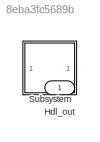
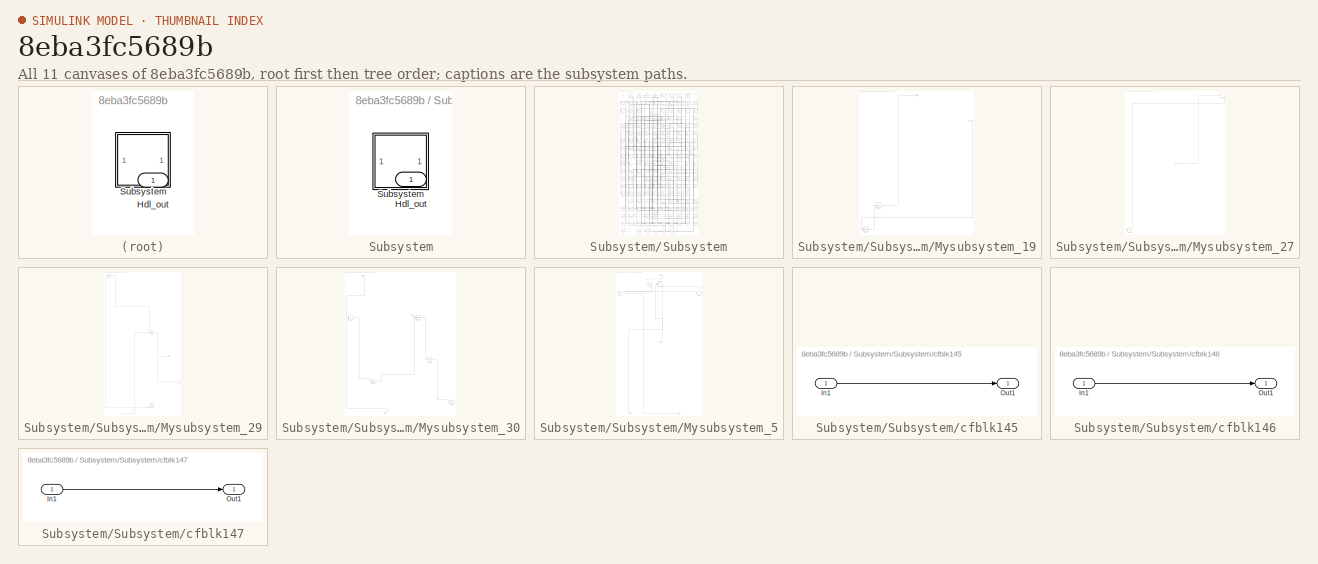
[diagram: thumbnail index - all 11 canvases of the model, root first then tree order]
MODEL slx_8eba3fc5689b
KIND model
CONFIG AbsTol = auto
CONFIG EnableMultiTasking = off
CONFIG FixedStep = auto
CONFIG MaxStep = auto
CONFIG MinStep = auto
CONFIG RelTol = 1e-3
CONFIG SampleTimeConstraint = Unconstrained
CONFIG SolverName = VariableStepAuto
CONFIG StartTime = 0.0
CONFIG StopTime = 10.0
BLOCK [Outport] Hdl_out
  OutDataTypeStr = uint8
BLOCK [SubSystem] Subsystem
BLOCK [Outport] Subsystem/Hdl_out
  OutDataTypeStr = uint8
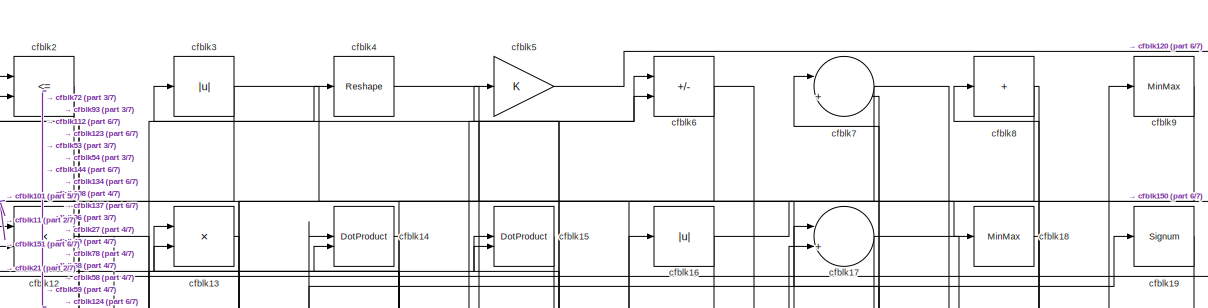
[diagram: Subsystem/Subsystem - part 1/7, full width, top band]
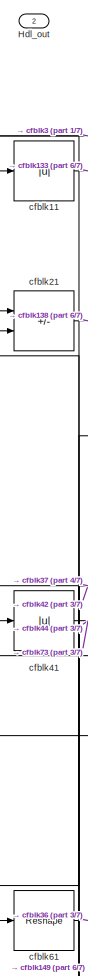
[diagram: Subsystem/Subsystem - part 2/7, top left region]
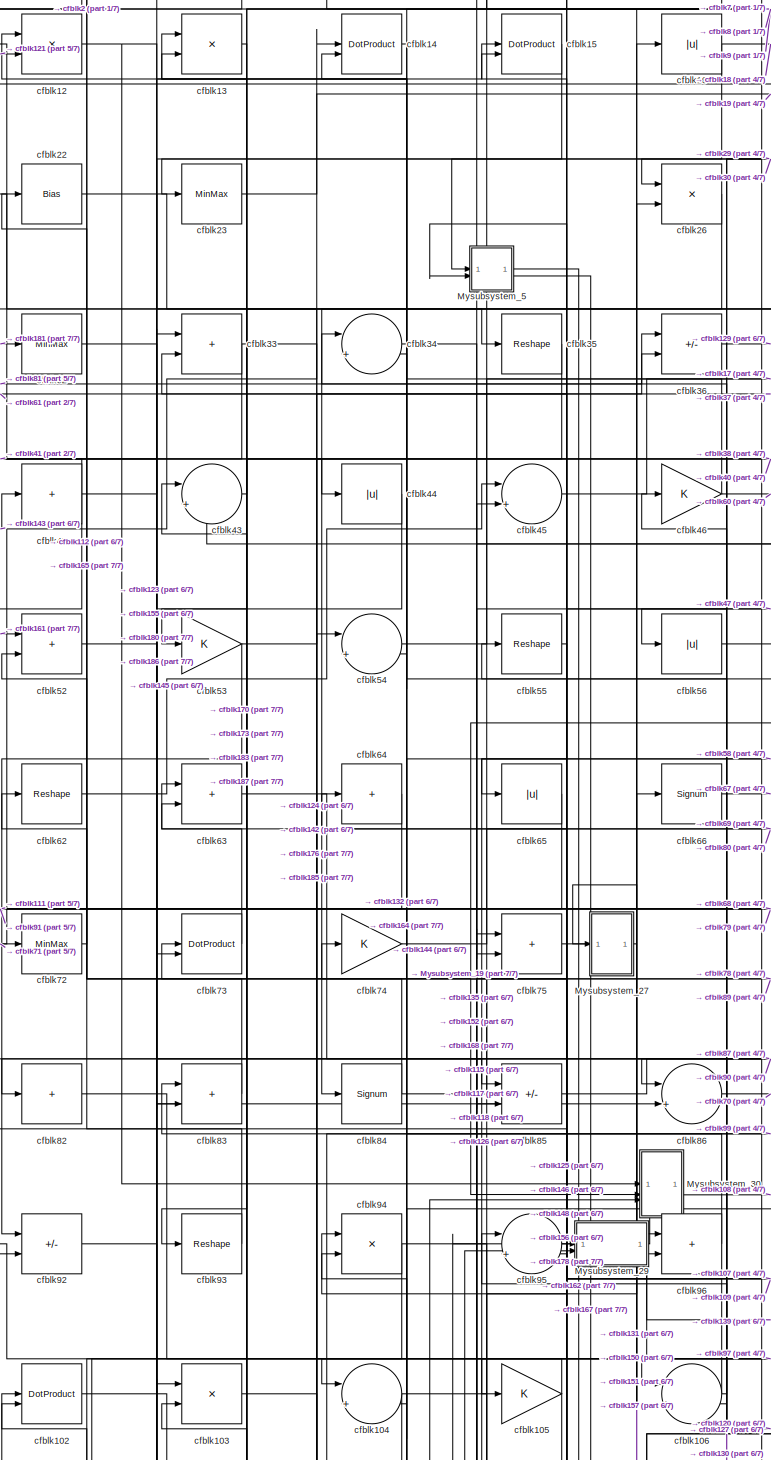
[diagram: Subsystem/Subsystem - part 3/7, top center region]
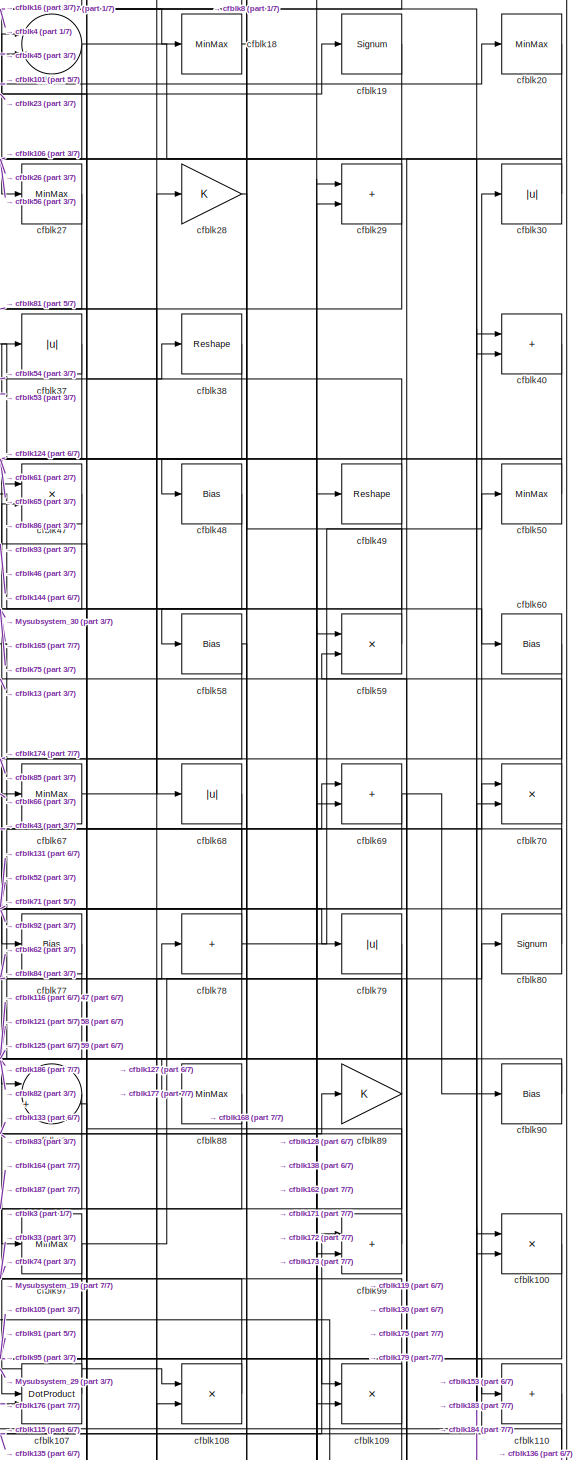
[diagram: Subsystem/Subsystem - part 4/7, top right region]
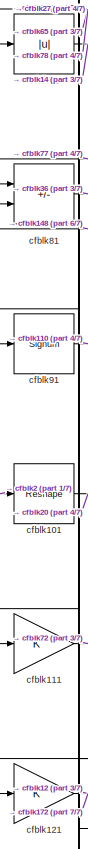
[diagram: Subsystem/Subsystem - part 5/7, middle left region]
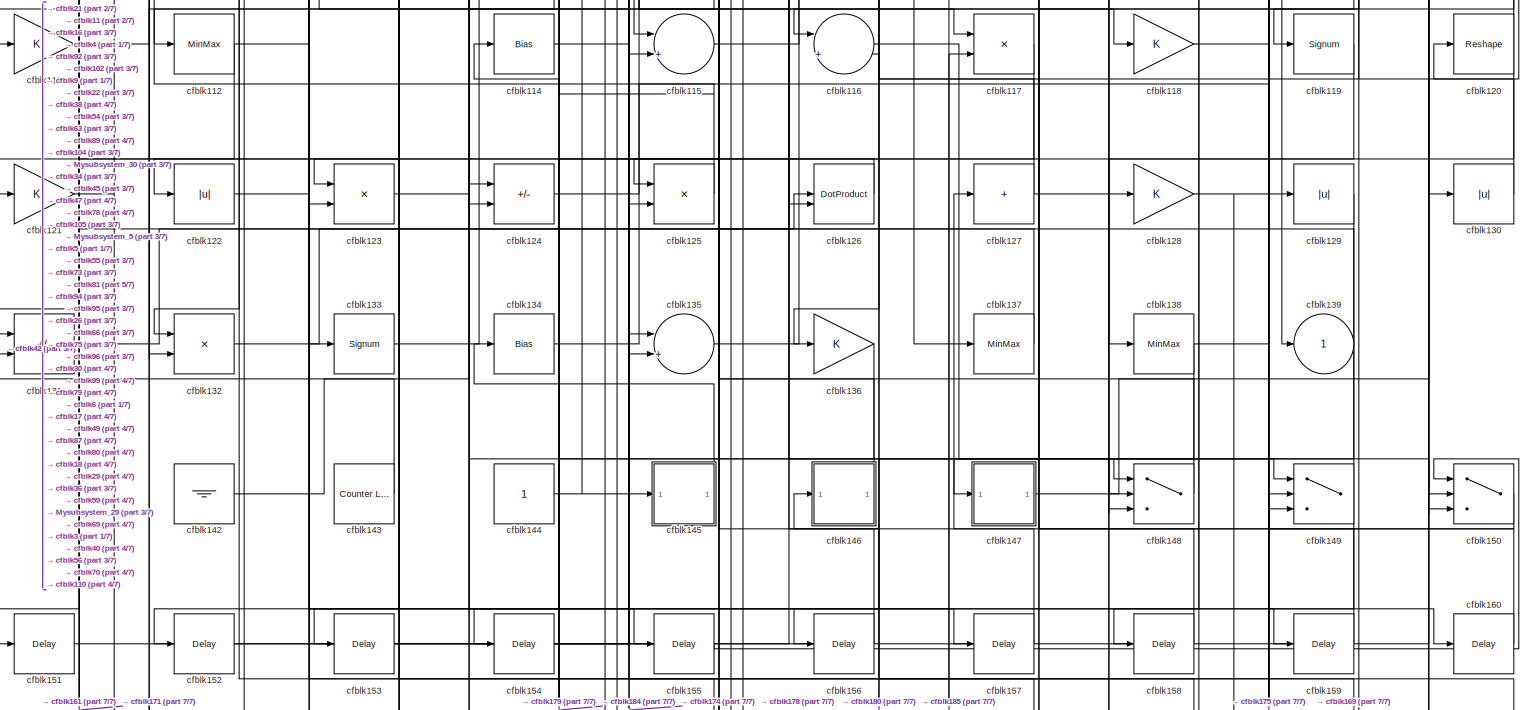
[diagram: Subsystem/Subsystem - part 6/7, full width, bottom band]
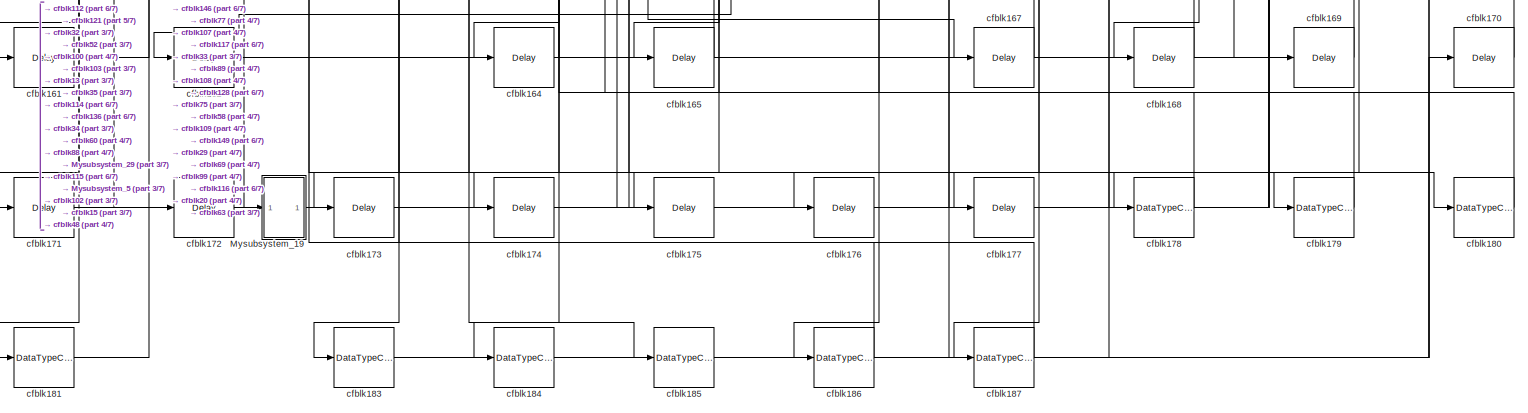
[diagram: Subsystem/Subsystem - part 7/7, full width, bottom band]
BLOCK [SubSystem] Subsystem/Subsystem
BLOCK [Outport] Subsystem/Subsystem/Hdl_out
  OutDataTypeStr = uint8
  Port = 2
BLOCK [SubSystem] Subsystem/Subsystem/Mysubsystem_19
  RTWFcnName = Mysubsystem_19
  RTWFcnNameOpts = User specified
  RTWFileNameOpts = Use function name
  RTWSystemCode = Reusable function
  TreatAsAtomicUnit = on
BLOCK [Inport] Subsystem/Subsystem/Mysubsystem_19/In1
BLOCK [Outport] Subsystem/Subsystem/Mysubsystem_19/Out1
BLOCK [Delay] Subsystem/Subsystem/Mysubsystem_19/cfblk163
  InputPortMap = u0
  SampleTime = 1
BLOCK [DataTypeConversion] Subsystem/Subsystem/Mysubsystem_19/cfblk182
  OutDataTypeStr = uint8
  RndMeth = Floor
  SaturateOnIntegerOverflow = off
BLOCK [SubSystem] Subsystem/Subsystem/Mysubsystem_27
  RTWFcnName = Mysubsystem_27
  RTWFcnNameOpts = User specified
  RTWFileNameOpts = Use function name
  RTWSystemCode = Reusable function
  TreatAsAtomicUnit = on
BLOCK [Inport] Subsystem/Subsystem/Mysubsystem_27/In1
BLOCK [Sum] Subsystem/Subsystem/Mysubsystem_27/cfblk10
  IconShape = rectangular
  Inputs = +
BLOCK [Scope] Subsystem/Subsystem/Mysubsystem_27/cfblk141
  Floating = off
  NumInputPorts = 1
  ScopeSpecificationString = Simulink.scopes.TimeScopeBlockCfg('CurrentConfiguration', extmgr.ConfigurationSet(extmgr.Configuration('Core','General UI',true),extmgr.Configuration('Core','Source UI',true),extmgr.Configuration('Sources','WiredSimulink',true,'DataLoggingVariableName','ScopeData2','DataLoggingSaveFormat','Array','DataLoggingLimitDataPoints',true,'DataLoggingDecimation','1'),extmgr.Configuration('Visuals','Time Do...<+868ch>
BLOCK [SubSystem] Subsystem/Subsystem/Mysubsystem_29
  RTWFcnName = Mysubsystem_29
  RTWFcnNameOpts = User specified
  RTWFileNameOpts = Use function name
  RTWSystemCode = Reusable function
  TreatAsAtomicUnit = on
BLOCK [Inport] Subsystem/Subsystem/Mysubsystem_29/In1
BLOCK [Inport] Subsystem/Subsystem/Mysubsystem_29/In2
  Port = 2
BLOCK [Outport] Subsystem/Subsystem/Mysubsystem_29/Out1
BLOCK [Reference] Subsystem/Subsystem/Mysubsystem_29/cfblk1  REF=simulink/Logic and Bit
Operations/Bit Clear
  LibrarySourceBlock = hdlsllib/Logic and Bit\nOperations/Bit Clear
  SourceBlock = simulink/Logic and Bit\nOperations/Bit Clear
  SourceType = Bit Clear
BLOCK [Outport] Subsystem/Subsystem/Mysubsystem_29/cfblk139
  Port = 2
  VectorParamsAs1DForOutWhenUnconnected = off
BLOCK [Delay] Subsystem/Subsystem/Mysubsystem_29/cfblk166
  InputPortMap = u0
  SampleTime = 1
BLOCK [DotProduct] Subsystem/Subsystem/Mysubsystem_29/cfblk76
  OutDataTypeStr = Inherit: Inherit via internal rule
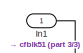
[diagram: Subsystem/Subsystem/Mysubsystem_30 - part 1/3, top left region]
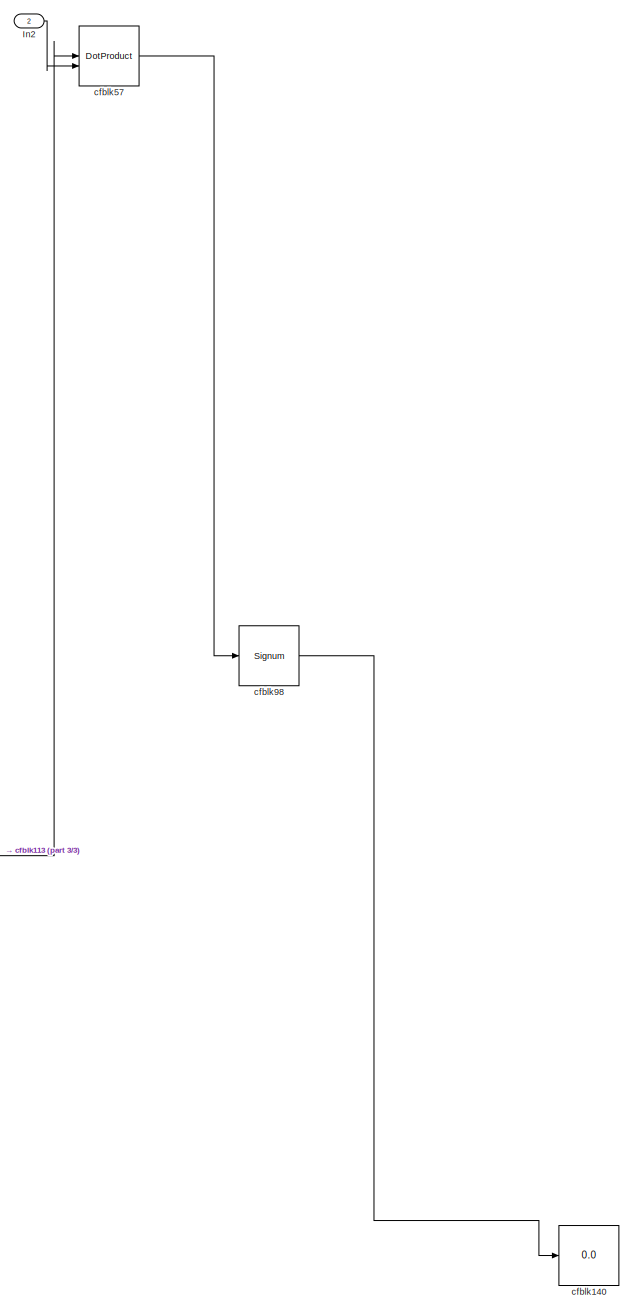
[diagram: Subsystem/Subsystem/Mysubsystem_30 - part 2/3, middle right region]
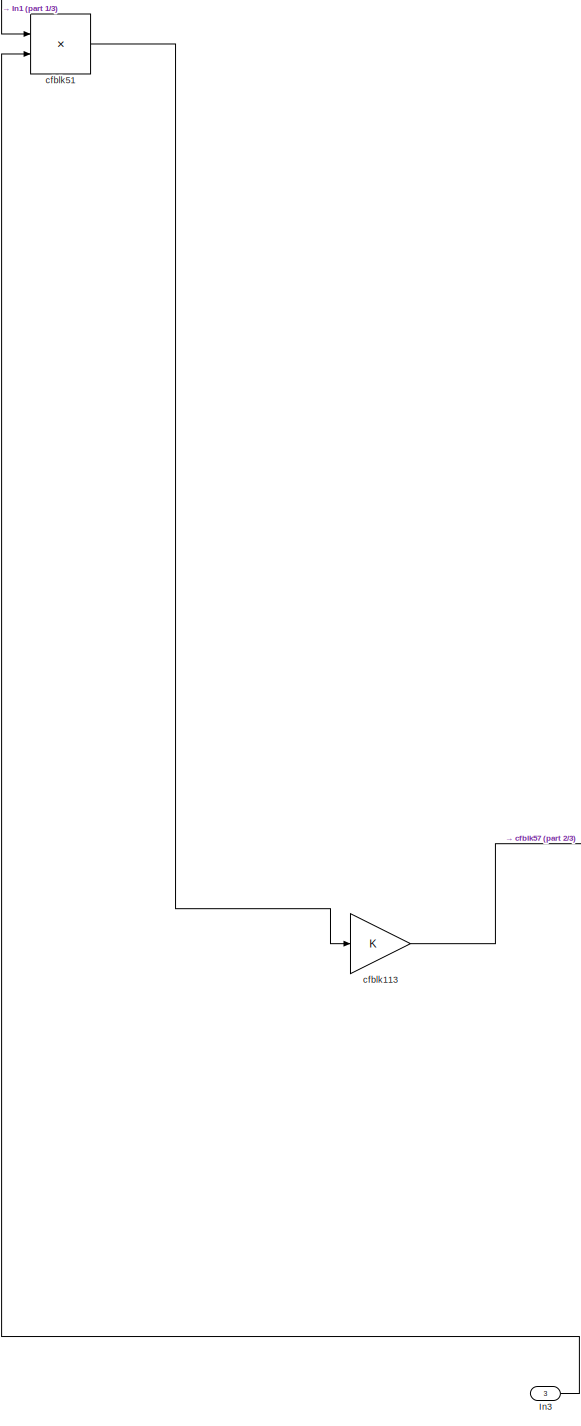
[diagram: Subsystem/Subsystem/Mysubsystem_30 - part 3/3, middle left region]
BLOCK [SubSystem] Subsystem/Subsystem/Mysubsystem_30
  RTWFcnName = Mysubsystem_30
  RTWFcnNameOpts = User specified
  RTWFileNameOpts = Use function name
  RTWSystemCode = Reusable function
  TreatAsAtomicUnit = on
BLOCK [Inport] Subsystem/Subsystem/Mysubsystem_30/In1
BLOCK [Inport] Subsystem/Subsystem/Mysubsystem_30/In2
  Port = 2
BLOCK [Inport] Subsystem/Subsystem/Mysubsystem_30/In3
  Port = 3
BLOCK [Gain] Subsystem/Subsystem/Mysubsystem_30/cfblk113
BLOCK [Display] Subsystem/Subsystem/Mysubsystem_30/cfblk140
  Decimation = 1
BLOCK [Product] Subsystem/Subsystem/Mysubsystem_30/cfblk51
  Inputs = */
  RndMeth = Zero
  SaturateOnIntegerOverflow = on
BLOCK [DotProduct] Subsystem/Subsystem/Mysubsystem_30/cfblk57
  OutDataTypeStr = Inherit: Inherit via internal rule
BLOCK [Signum] Subsystem/Subsystem/Mysubsystem_30/cfblk98
BLOCK [SubSystem] Subsystem/Subsystem/Mysubsystem_5
  RTWFcnName = Mysubsystem_5
  RTWFcnNameOpts = User specified
  RTWFileNameOpts = Use function name
  RTWSystemCode = Reusable function
  TreatAsAtomicUnit = on
BLOCK [Inport] Subsystem/Subsystem/Mysubsystem_5/In1
BLOCK [Inport] Subsystem/Subsystem/Mysubsystem_5/In2
  Port = 2
BLOCK [Outport] Subsystem/Subsystem/Mysubsystem_5/Out1
BLOCK [Outport] Subsystem/Subsystem/Mysubsystem_5/Out2
  Port = 2
BLOCK [Signum] Subsystem/Subsystem/Mysubsystem_5/cfblk24
BLOCK [Sum] Subsystem/Subsystem/Mysubsystem_5/cfblk25
  IconShape = rectangular
  Inputs = +-
BLOCK [Gain] Subsystem/Subsystem/Mysubsystem_5/cfblk31
BLOCK [Sum] Subsystem/Subsystem/Mysubsystem_5/cfblk39
  IconShape = rectangular
  Inputs = +
BLOCK [Product] Subsystem/Subsystem/cfblk100
  Inputs = */
  OutDataTypeStr = uint8
  RndMeth = Zero
  SaturateOnIntegerOverflow = on
BLOCK [Reshape] Subsystem/Subsystem/cfblk101
BLOCK [DotProduct] Subsystem/Subsystem/cfblk102
  OutDataTypeStr = uint8
BLOCK [Product] Subsystem/Subsystem/cfblk103
  Inputs = */
  OutDataTypeStr = uint8
  RndMeth = Zero
  SaturateOnIntegerOverflow = on
BLOCK [Sum] Subsystem/Subsystem/cfblk104
  Inputs = |++
  OutDataTypeStr = uint8
BLOCK [Gain] Subsystem/Subsystem/cfblk105
  OutDataTypeStr = uint8
BLOCK [Sum] Subsystem/Subsystem/cfblk106
  Inputs = |++
  OutDataTypeStr = uint8
BLOCK [DotProduct] Subsystem/Subsystem/cfblk107
  OutDataTypeStr = uint8
BLOCK [Product] Subsystem/Subsystem/cfblk108
  Inputs = */
  OutDataTypeStr = uint8
  RndMeth = Zero
  SaturateOnIntegerOverflow = on
BLOCK [Product] Subsystem/Subsystem/cfblk109
  Inputs = */
  OutDataTypeStr = uint8
  RndMeth = Zero
  SaturateOnIntegerOverflow = on
BLOCK [Abs] Subsystem/Subsystem/cfblk11
  OutDataTypeStr = uint8
  SaturateOnIntegerOverflow = off
BLOCK [Sum] Subsystem/Subsystem/cfblk110
  IconShape = rectangular
  Inputs = +
  OutDataTypeStr = uint8
BLOCK [Gain] Subsystem/Subsystem/cfblk111
  OutDataTypeStr = uint8
BLOCK [MinMax] Subsystem/Subsystem/cfblk112
  OutDataTypeStr = uint8
BLOCK [Bias] Subsystem/Subsystem/cfblk114
  Bias = 0.0
  SaturateOnIntegerOverflow = off
BLOCK [Sum] Subsystem/Subsystem/cfblk115
  Inputs = |++
  OutDataTypeStr = uint8
BLOCK [Sum] Subsystem/Subsystem/cfblk116
  Inputs = |++
  OutDataTypeStr = uint8
BLOCK [Product] Subsystem/Subsystem/cfblk117
  Inputs = */
  OutDataTypeStr = uint8
  RndMeth = Zero
  SaturateOnIntegerOverflow = on
BLOCK [Gain] Subsystem/Subsystem/cfblk118
  OutDataTypeStr = uint8
BLOCK [Signum] Subsystem/Subsystem/cfblk119
BLOCK [Product] Subsystem/Subsystem/cfblk12
  Inputs = */
  OutDataTypeStr = uint8
  RndMeth = Zero
  SaturateOnIntegerOverflow = on
BLOCK [Reshape] Subsystem/Subsystem/cfblk120
BLOCK [Gain] Subsystem/Subsystem/cfblk121
  OutDataTypeStr = uint8
BLOCK [Abs] Subsystem/Subsystem/cfblk122
  OutDataTypeStr = uint8
  SaturateOnIntegerOverflow = off
BLOCK [Product] Subsystem/Subsystem/cfblk123
  Inputs = */
  OutDataTypeStr = uint8
  RndMeth = Zero
  SaturateOnIntegerOverflow = on
BLOCK [Sum] Subsystem/Subsystem/cfblk124
  IconShape = rectangular
  Inputs = +-
  OutDataTypeStr = uint8
BLOCK [Product] Subsystem/Subsystem/cfblk125
  Inputs = */
  OutDataTypeStr = uint8
  RndMeth = Zero
  SaturateOnIntegerOverflow = on
BLOCK [DotProduct] Subsystem/Subsystem/cfblk126
  OutDataTypeStr = uint8
BLOCK [Sum] Subsystem/Subsystem/cfblk127
  IconShape = rectangular
  Inputs = +
  OutDataTypeStr = uint8
BLOCK [Gain] Subsystem/Subsystem/cfblk128
  OutDataTypeStr = uint8
BLOCK [Abs] Subsystem/Subsystem/cfblk129
  OutDataTypeStr = uint8
  SaturateOnIntegerOverflow = off
BLOCK [Product] Subsystem/Subsystem/cfblk13
  Inputs = */
  OutDataTypeStr = uint8
  RndMeth = Zero
  SaturateOnIntegerOverflow = on
BLOCK [Abs] Subsystem/Subsystem/cfblk130
  OutDataTypeStr = uint8
  SaturateOnIntegerOverflow = off
BLOCK [Sum] Subsystem/Subsystem/cfblk131
  IconShape = rectangular
  Inputs = +-
  OutDataTypeStr = uint8
BLOCK [Product] Subsystem/Subsystem/cfblk132
  Inputs = */
  OutDataTypeStr = uint8
  RndMeth = Zero
  SaturateOnIntegerOverflow = on
BLOCK [Signum] Subsystem/Subsystem/cfblk133
BLOCK [Bias] Subsystem/Subsystem/cfblk134
  Bias = 0.0
  SaturateOnIntegerOverflow = off
BLOCK [Sum] Subsystem/Subsystem/cfblk135
  Inputs = |++
  OutDataTypeStr = uint8
BLOCK [Gain] Subsystem/Subsystem/cfblk136
  OutDataTypeStr = uint8
BLOCK [MinMax] Subsystem/Subsystem/cfblk137
  OutDataTypeStr = uint8
BLOCK [MinMax] Subsystem/Subsystem/cfblk138
  OutDataTypeStr = uint8
BLOCK [Outport] Subsystem/Subsystem/cfblk139
  OutDataTypeStr = uint8
  VectorParamsAs1DForOutWhenUnconnected = off
BLOCK [DotProduct] Subsystem/Subsystem/cfblk14
  OutDataTypeStr = uint8
BLOCK [Ground] Subsystem/Subsystem/cfblk142
BLOCK [Reference] Subsystem/Subsystem/cfblk143  REF=hdlsllib/Sources/Counter
Limited
  SourceBlock = hdlsllib/Sources/Counter\nLimited
  SourceType = Counter Limited
BLOCK [Constant] Subsystem/Subsystem/cfblk144
  OutDataTypeStr = uint8
  SampleTime = -1
BLOCK [SubSystem] Subsystem/Subsystem/cfblk145
  LibrarySourceBlock = hdlsllib/Ports &\nSubsystems/Subsystem
BLOCK [Inport] Subsystem/Subsystem/cfblk145/In1
BLOCK [Outport] Subsystem/Subsystem/cfblk145/Out1
BLOCK [SubSystem] Subsystem/Subsystem/cfblk146
  LibrarySourceBlock = hdlsllib/Ports &\nSubsystems/Subsystem
BLOCK [Inport] Subsystem/Subsystem/cfblk146/In1
BLOCK [Outport] Subsystem/Subsystem/cfblk146/Out1
BLOCK [SubSystem] Subsystem/Subsystem/cfblk147
  LibrarySourceBlock = hdlsllib/Ports &\nSubsystems/Subsystem
BLOCK [Inport] Subsystem/Subsystem/cfblk147/In1
BLOCK [Outport] Subsystem/Subsystem/cfblk147/Out1
BLOCK [Switch] Subsystem/Subsystem/cfblk148
  InputSameDT = off
  OutDataTypeStr = uint8
  SaturateOnIntegerOverflow = off
BLOCK [Switch] Subsystem/Subsystem/cfblk149
  InputSameDT = off
  OutDataTypeStr = uint8
  SaturateOnIntegerOverflow = off
BLOCK [DotProduct] Subsystem/Subsystem/cfblk15
  OutDataTypeStr = uint8
BLOCK [Switch] Subsystem/Subsystem/cfblk150
  InputSameDT = off
  OutDataTypeStr = uint8
  SaturateOnIntegerOverflow = off
BLOCK [Delay] Subsystem/Subsystem/cfblk151
  InputPortMap = u0
  SampleTime = 1
BLOCK [Delay] Subsystem/Subsystem/cfblk152
  InputPortMap = u0
  SampleTime = 1
BLOCK [Delay] Subsystem/Subsystem/cfblk153
  InputPortMap = u0
  SampleTime = 1
BLOCK [Delay] Subsystem/Subsystem/cfblk154
  InputPortMap = u0
  SampleTime = 1
BLOCK [Delay] Subsystem/Subsystem/cfblk155
  InputPortMap = u0
  SampleTime = 1
BLOCK [Delay] Subsystem/Subsystem/cfblk156
  InputPortMap = u0
  SampleTime = 1
BLOCK [Delay] Subsystem/Subsystem/cfblk157
  InputPortMap = u0
  SampleTime = 1
BLOCK [Delay] Subsystem/Subsystem/cfblk158
  InputPortMap = u0
  SampleTime = 1
BLOCK [Delay] Subsystem/Subsystem/cfblk159
  InputPortMap = u0
  SampleTime = 1
BLOCK [Abs] Subsystem/Subsystem/cfblk16
  OutDataTypeStr = uint8
  SaturateOnIntegerOverflow = off
BLOCK [Delay] Subsystem/Subsystem/cfblk160
  InputPortMap = u0
  SampleTime = 1
BLOCK [Delay] Subsystem/Subsystem/cfblk161
  InputPortMap = u0
  SampleTime = 1
BLOCK [Delay] Subsystem/Subsystem/cfblk162
  InputPortMap = u0
  SampleTime = 1
BLOCK [Delay] Subsystem/Subsystem/cfblk164
  InputPortMap = u0
  SampleTime = 1
BLOCK [Delay] Subsystem/Subsystem/cfblk165
  InputPortMap = u0
  SampleTime = 1
BLOCK [Delay] Subsystem/Subsystem/cfblk167
  InputPortMap = u0
  SampleTime = 1
BLOCK [Delay] Subsystem/Subsystem/cfblk168
  InputPortMap = u0
  SampleTime = 1
BLOCK [Delay] Subsystem/Subsystem/cfblk169
  InputPortMap = u0
  SampleTime = 1
BLOCK [Sum] Subsystem/Subsystem/cfblk17
  Inputs = |++
  OutDataTypeStr = uint8
BLOCK [Delay] Subsystem/Subsystem/cfblk170
  InputPortMap = u0
  SampleTime = 1
BLOCK [Delay] Subsystem/Subsystem/cfblk171
  InputPortMap = u0
  SampleTime = 1
BLOCK [Delay] Subsystem/Subsystem/cfblk172
  InputPortMap = u0
  SampleTime = 1
BLOCK [Delay] Subsystem/Subsystem/cfblk173
  InputPortMap = u0
  SampleTime = 1
BLOCK [Delay] Subsystem/Subsystem/cfblk174
  InputPortMap = u0
  SampleTime = 1
BLOCK [Delay] Subsystem/Subsystem/cfblk175
  InputPortMap = u0
  SampleTime = 1
BLOCK [Delay] Subsystem/Subsystem/cfblk176
  InputPortMap = u0
  SampleTime = 1
BLOCK [Delay] Subsystem/Subsystem/cfblk177
  InputPortMap = u0
  SampleTime = 1
BLOCK [DataTypeConversion] Subsystem/Subsystem/cfblk178
  OutDataTypeStr = uint8
  RndMeth = Floor
  SaturateOnIntegerOverflow = off
BLOCK [DataTypeConversion] Subsystem/Subsystem/cfblk179
  OutDataTypeStr = uint8
  RndMeth = Floor
  SaturateOnIntegerOverflow = off
BLOCK [MinMax] Subsystem/Subsystem/cfblk18
  OutDataTypeStr = uint8
BLOCK [DataTypeConversion] Subsystem/Subsystem/cfblk180
  OutDataTypeStr = uint8
  RndMeth = Floor
  SaturateOnIntegerOverflow = off
BLOCK [DataTypeConversion] Subsystem/Subsystem/cfblk181
  OutDataTypeStr = uint8
  RndMeth = Floor
  SaturateOnIntegerOverflow = off
BLOCK [DataTypeConversion] Subsystem/Subsystem/cfblk183
  OutDataTypeStr = uint8
  RndMeth = Floor
  SaturateOnIntegerOverflow = off
BLOCK [DataTypeConversion] Subsystem/Subsystem/cfblk184
  OutDataTypeStr = uint8
  RndMeth = Floor
  SaturateOnIntegerOverflow = off
BLOCK [DataTypeConversion] Subsystem/Subsystem/cfblk185
  OutDataTypeStr = uint8
  RndMeth = Floor
  SaturateOnIntegerOverflow = off
BLOCK [DataTypeConversion] Subsystem/Subsystem/cfblk186
  OutDataTypeStr = uint8
  RndMeth = Floor
  SaturateOnIntegerOverflow = off
BLOCK [DataTypeConversion] Subsystem/Subsystem/cfblk187
  OutDataTypeStr = uint8
  RndMeth = Floor
  SaturateOnIntegerOverflow = off
BLOCK [Signum] Subsystem/Subsystem/cfblk19
BLOCK [RelationalOperator] Subsystem/Subsystem/cfblk2
  InputSameDT = off
  Operator = <=
  OutDataTypeStr = boolean
BLOCK [MinMax] Subsystem/Subsystem/cfblk20
  OutDataTypeStr = uint8
BLOCK [Sum] Subsystem/Subsystem/cfblk21
  IconShape = rectangular
  Inputs = +-
  OutDataTypeStr = uint8
BLOCK [Bias] Subsystem/Subsystem/cfblk22
  Bias = 0.0
  SaturateOnIntegerOverflow = off
BLOCK [MinMax] Subsystem/Subsystem/cfblk23
  OutDataTypeStr = uint8
BLOCK [Product] Subsystem/Subsystem/cfblk26
  Inputs = */
  OutDataTypeStr = uint8
  RndMeth = Zero
  SaturateOnIntegerOverflow = on
BLOCK [MinMax] Subsystem/Subsystem/cfblk27
  OutDataTypeStr = uint8
BLOCK [Gain] Subsystem/Subsystem/cfblk28
  OutDataTypeStr = uint8
BLOCK [Sum] Subsystem/Subsystem/cfblk29
  IconShape = rectangular
  OutDataTypeStr = uint8
BLOCK [Abs] Subsystem/Subsystem/cfblk3
  OutDataTypeStr = uint8
  SaturateOnIntegerOverflow = off
BLOCK [Abs] Subsystem/Subsystem/cfblk30
  OutDataTypeStr = uint8
  SaturateOnIntegerOverflow = off
BLOCK [MinMax] Subsystem/Subsystem/cfblk32
  OutDataTypeStr = uint8
BLOCK [Sum] Subsystem/Subsystem/cfblk33
  IconShape = rectangular
  OutDataTypeStr = uint8
BLOCK [Sum] Subsystem/Subsystem/cfblk34
  Inputs = |++
  OutDataTypeStr = uint8
BLOCK [Reshape] Subsystem/Subsystem/cfblk35
BLOCK [Sum] Subsystem/Subsystem/cfblk36
  IconShape = rectangular
  Inputs = +-
  OutDataTypeStr = uint8
BLOCK [Abs] Subsystem/Subsystem/cfblk37
  OutDataTypeStr = uint8
  SaturateOnIntegerOverflow = off
BLOCK [Reshape] Subsystem/Subsystem/cfblk38
BLOCK [Reshape] Subsystem/Subsystem/cfblk4
BLOCK [Sum] Subsystem/Subsystem/cfblk40
  IconShape = rectangular
  OutDataTypeStr = uint8
BLOCK [Abs] Subsystem/Subsystem/cfblk41
  OutDataTypeStr = uint8
  SaturateOnIntegerOverflow = off
BLOCK [Sum] Subsystem/Subsystem/cfblk42
  IconShape = rectangular
  Inputs = +
  OutDataTypeStr = uint8
BLOCK [Sum] Subsystem/Subsystem/cfblk43
  Inputs = |++
  OutDataTypeStr = uint8
BLOCK [Abs] Subsystem/Subsystem/cfblk44
  OutDataTypeStr = uint8
  SaturateOnIntegerOverflow = off
BLOCK [Sum] Subsystem/Subsystem/cfblk45
  Inputs = |++
  OutDataTypeStr = uint8
BLOCK [Gain] Subsystem/Subsystem/cfblk46
  OutDataTypeStr = uint8
BLOCK [Product] Subsystem/Subsystem/cfblk47
  Inputs = */
  OutDataTypeStr = uint8
  RndMeth = Zero
  SaturateOnIntegerOverflow = on
BLOCK [Bias] Subsystem/Subsystem/cfblk48
  Bias = 0.0
  SaturateOnIntegerOverflow = off
BLOCK [Reshape] Subsystem/Subsystem/cfblk49
BLOCK [Gain] Subsystem/Subsystem/cfblk5
  OutDataTypeStr = uint8
BLOCK [MinMax] Subsystem/Subsystem/cfblk50
  OutDataTypeStr = uint8
BLOCK [Sum] Subsystem/Subsystem/cfblk52
  IconShape = rectangular
  OutDataTypeStr = uint8
BLOCK [Gain] Subsystem/Subsystem/cfblk53
  OutDataTypeStr = uint8
BLOCK [Sum] Subsystem/Subsystem/cfblk54
  Inputs = |++
  OutDataTypeStr = uint8
BLOCK [Reshape] Subsystem/Subsystem/cfblk55
BLOCK [Abs] Subsystem/Subsystem/cfblk56
  OutDataTypeStr = uint8
  SaturateOnIntegerOverflow = off
BLOCK [Bias] Subsystem/Subsystem/cfblk58
  Bias = 0.0
  SaturateOnIntegerOverflow = off
BLOCK [Product] Subsystem/Subsystem/cfblk59
  Inputs = */
  OutDataTypeStr = uint8
  RndMeth = Zero
  SaturateOnIntegerOverflow = on
BLOCK [Sum] Subsystem/Subsystem/cfblk6
  IconShape = rectangular
  Inputs = +-
  OutDataTypeStr = uint8
BLOCK [Bias] Subsystem/Subsystem/cfblk60
  Bias = 0.0
  SaturateOnIntegerOverflow = off
BLOCK [Reshape] Subsystem/Subsystem/cfblk61
BLOCK [Reshape] Subsystem/Subsystem/cfblk62
BLOCK [Sum] Subsystem/Subsystem/cfblk63
  IconShape = rectangular
  OutDataTypeStr = uint8
BLOCK [Sum] Subsystem/Subsystem/cfblk64
  IconShape = rectangular
  Inputs = +
  OutDataTypeStr = uint8
BLOCK [Abs] Subsystem/Subsystem/cfblk65
  OutDataTypeStr = uint8
  SaturateOnIntegerOverflow = off
BLOCK [Signum] Subsystem/Subsystem/cfblk66
BLOCK [MinMax] Subsystem/Subsystem/cfblk67
  OutDataTypeStr = uint8
BLOCK [Abs] Subsystem/Subsystem/cfblk68
  OutDataTypeStr = uint8
  SaturateOnIntegerOverflow = off
BLOCK [Sum] Subsystem/Subsystem/cfblk69
  IconShape = rectangular
  OutDataTypeStr = uint8
BLOCK [Sum] Subsystem/Subsystem/cfblk7
  Inputs = |++
  OutDataTypeStr = uint8
BLOCK [Product] Subsystem/Subsystem/cfblk70
  Inputs = */
  OutDataTypeStr = uint8
  RndMeth = Zero
  SaturateOnIntegerOverflow = on
BLOCK [Abs] Subsystem/Subsystem/cfblk71
  OutDataTypeStr = uint8
  SaturateOnIntegerOverflow = off
BLOCK [MinMax] Subsystem/Subsystem/cfblk72
  OutDataTypeStr = uint8
BLOCK [DotProduct] Subsystem/Subsystem/cfblk73
  OutDataTypeStr = uint8
BLOCK [Gain] Subsystem/Subsystem/cfblk74
  OutDataTypeStr = uint8
BLOCK [Sum] Subsystem/Subsystem/cfblk75
  IconShape = rectangular
  OutDataTypeStr = uint8
BLOCK [Bias] Subsystem/Subsystem/cfblk77
  Bias = 0.0
  SaturateOnIntegerOverflow = off
BLOCK [Sum] Subsystem/Subsystem/cfblk78
  IconShape = rectangular
  Inputs = +
  OutDataTypeStr = uint8
BLOCK [Abs] Subsystem/Subsystem/cfblk79
  OutDataTypeStr = uint8
  SaturateOnIntegerOverflow = off
BLOCK [Sum] Subsystem/Subsystem/cfblk8
  IconShape = rectangular
  Inputs = +
  OutDataTypeStr = uint8
BLOCK [Signum] Subsystem/Subsystem/cfblk80
BLOCK [Sum] Subsystem/Subsystem/cfblk81
  IconShape = rectangular
  Inputs = +-
  OutDataTypeStr = uint8
BLOCK [Sum] Subsystem/Subsystem/cfblk82
  IconShape = rectangular
  Inputs = +
  OutDataTypeStr = uint8
BLOCK [Sum] Subsystem/Subsystem/cfblk83
  IconShape = rectangular
  OutDataTypeStr = uint8
BLOCK [Signum] Subsystem/Subsystem/cfblk84
BLOCK [Sum] Subsystem/Subsystem/cfblk85
  IconShape = rectangular
  Inputs = +-
  OutDataTypeStr = uint8
BLOCK [Sum] Subsystem/Subsystem/cfblk86
  Inputs = |++
  OutDataTypeStr = uint8
BLOCK [Sum] Subsystem/Subsystem/cfblk87
  Inputs = |++
  OutDataTypeStr = uint8
BLOCK [MinMax] Subsystem/Subsystem/cfblk88
  OutDataTypeStr = uint8
BLOCK [Gain] Subsystem/Subsystem/cfblk89
  OutDataTypeStr = uint8
BLOCK [MinMax] Subsystem/Subsystem/cfblk9
  OutDataTypeStr = uint8
BLOCK [Bias] Subsystem/Subsystem/cfblk90
  Bias = 0.0
  SaturateOnIntegerOverflow = off
BLOCK [Signum] Subsystem/Subsystem/cfblk91
BLOCK [Sum] Subsystem/Subsystem/cfblk92
  IconShape = rectangular
  Inputs = +-
  OutDataTypeStr = uint8
BLOCK [Reshape] Subsystem/Subsystem/cfblk93
BLOCK [Product] Subsystem/Subsystem/cfblk94
  Inputs = */
  OutDataTypeStr = uint8
  RndMeth = Zero
  SaturateOnIntegerOverflow = on
BLOCK [Sum] Subsystem/Subsystem/cfblk95
  Inputs = |++
  OutDataTypeStr = uint8
BLOCK [Sum] Subsystem/Subsystem/cfblk96
  IconShape = rectangular
  OutDataTypeStr = uint8
BLOCK [MinMax] Subsystem/Subsystem/cfblk97
  OutDataTypeStr = uint8
BLOCK [Sum] Subsystem/Subsystem/cfblk99
  IconShape = rectangular
  OutDataTypeStr = uint8
LINE Subsystem/Subsystem/Mysubsystem_19/In1:1 -> Subsystem/Subsystem/Mysubsystem_19/cfblk182:1
LINE Subsystem/Subsystem/Mysubsystem_19/cfblk163:1 -> Subsystem/Subsystem/Mysubsystem_19/Out1:1
LINE Subsystem/Subsystem/Mysubsystem_19/cfblk182:1 -> Subsystem/Subsystem/Mysubsystem_19/cfblk163:1
LINE Subsystem/Subsystem/Mysubsystem_19:1 -> Subsystem/Subsystem/Mysubsystem_29:2
LINE Subsystem/Subsystem/Mysubsystem_27/In1:1 -> Subsystem/Subsystem/Mysubsystem_27/cfblk10:1
LINE Subsystem/Subsystem/Mysubsystem_27/cfblk10:1 -> Subsystem/Subsystem/Mysubsystem_27/cfblk141:1
LINE Subsystem/Subsystem/Mysubsystem_29/In1:1 -> Subsystem/Subsystem/Mysubsystem_29/cfblk166:1
LINE Subsystem/Subsystem/Mysubsystem_29/In2:1 -> Subsystem/Subsystem/Mysubsystem_29/cfblk76:1
LINE Subsystem/Subsystem/Mysubsystem_29/cfblk166:1 -> Subsystem/Subsystem/Mysubsystem_29/cfblk1:1
LINE Subsystem/Subsystem/Mysubsystem_29/cfblk1:1 -> Subsystem/Subsystem/Mysubsystem_29/cfblk76:2
NET Subsystem/Subsystem/Mysubsystem_29/cfblk76:1 -> Subsystem/Subsystem/Mysubsystem_29/Out1:1, Subsystem/Subsystem/Mysubsystem_29/cfblk139:1
LINE Subsystem/Subsystem/Mysubsystem_29:1 -> Subsystem/Subsystem/cfblk108:1
LINE Subsystem/Subsystem/Mysubsystem_29:2 -> Subsystem/Subsystem/cfblk139:1
LINE Subsystem/Subsystem/Mysubsystem_30/In1:1 -> Subsystem/Subsystem/Mysubsystem_30/cfblk51:1
LINE Subsystem/Subsystem/Mysubsystem_30/In2:1 -> Subsystem/Subsystem/Mysubsystem_30/cfblk57:2
LINE Subsystem/Subsystem/Mysubsystem_30/In3:1 -> Subsystem/Subsystem/Mysubsystem_30/cfblk51:2
LINE Subsystem/Subsystem/Mysubsystem_30/cfblk113:1 -> Subsystem/Subsystem/Mysubsystem_30/cfblk57:1
LINE Subsystem/Subsystem/Mysubsystem_30/cfblk51:1 -> Subsystem/Subsystem/Mysubsystem_30/cfblk113:1
LINE Subsystem/Subsystem/Mysubsystem_30/cfblk57:1 -> Subsystem/Subsystem/Mysubsystem_30/cfblk98:1
LINE Subsystem/Subsystem/Mysubsystem_30/cfblk98:1 -> Subsystem/Subsystem/Mysubsystem_30/cfblk140:1
LINE Subsystem/Subsystem/Mysubsystem_5/In1:1 -> Subsystem/Subsystem/Mysubsystem_5/cfblk24:1
LINE Subsystem/Subsystem/Mysubsystem_5/In2:1 -> Subsystem/Subsystem/Mysubsystem_5/cfblk25:2
LINE Subsystem/Subsystem/Mysubsystem_5/cfblk24:1 -> Subsystem/Subsystem/Mysubsystem_5/cfblk31:1
LINE Subsystem/Subsystem/Mysubsystem_5/cfblk25:1 -> Subsystem/Subsystem/Mysubsystem_5/Out1:1
NET Subsystem/Subsystem/Mysubsystem_5/cfblk31:1 -> Subsystem/Subsystem/Mysubsystem_5/Out2:1, Subsystem/Subsystem/Mysubsystem_5/cfblk39:1
LINE Subsystem/Subsystem/Mysubsystem_5/cfblk39:1 -> Subsystem/Subsystem/Mysubsystem_5/cfblk25:1
LINE Subsystem/Subsystem/Mysubsystem_5:1 -> Subsystem/Subsystem/cfblk162:1
LINE Subsystem/Subsystem/Mysubsystem_5:2 -> Subsystem/Subsystem/cfblk167:1
LINE Subsystem/Subsystem/cfblk100:1 -> Subsystem/Subsystem/Mysubsystem_19:1
LINE Subsystem/Subsystem/cfblk101:1 -> Subsystem/Subsystem/cfblk20:1
NET Subsystem/Subsystem/cfblk102:1 -> Subsystem/Subsystem/cfblk145:1, Subsystem/Subsystem/cfblk86:2
LINE Subsystem/Subsystem/cfblk103:1 -> Subsystem/Subsystem/cfblk185:1
NET Subsystem/Subsystem/cfblk104:1 -> Subsystem/Subsystem/cfblk126:2, Subsystem/Subsystem/cfblk132:1, Subsystem/Subsystem/cfblk16:1
NET Subsystem/Subsystem/cfblk105:1 -> Subsystem/Subsystem/cfblk104:1, Subsystem/Subsystem/cfblk132:2
NET Subsystem/Subsystem/cfblk106:1 -> Subsystem/Subsystem/cfblk46:1, Subsystem/Subsystem/cfblk64:1
LINE Subsystem/Subsystem/cfblk107:1 -> Subsystem/Subsystem/cfblk33:2
LINE Subsystem/Subsystem/cfblk108:1 -> Subsystem/Subsystem/cfblk3:1
NET Subsystem/Subsystem/cfblk109:1 -> Subsystem/Subsystem/cfblk187:1, Subsystem/Subsystem/cfblk74:1
LINE Subsystem/Subsystem/cfblk110:1 -> Subsystem/Subsystem/cfblk136:1
LINE Subsystem/Subsystem/cfblk111:1 -> Subsystem/Subsystem/cfblk72:1
NET Subsystem/Subsystem/cfblk112:1 -> Subsystem/Subsystem/cfblk161:1, Subsystem/Subsystem/cfblk4:1
LINE Subsystem/Subsystem/cfblk114:1 -> Subsystem/Subsystem/cfblk178:1
LINE Subsystem/Subsystem/cfblk115:1 -> Subsystem/Subsystem/cfblk30:1
LINE Subsystem/Subsystem/cfblk116:1 -> Subsystem/Subsystem/cfblk149:1
LINE Subsystem/Subsystem/cfblk117:1 -> Subsystem/Subsystem/cfblk171:1
LINE Subsystem/Subsystem/cfblk118:1 -> Subsystem/Subsystem/cfblk160:1
LINE Subsystem/Subsystem/cfblk119:1 -> Subsystem/Subsystem/cfblk154:1
LINE Subsystem/Subsystem/cfblk11:1 -> Subsystem/Subsystem/cfblk133:1
NET Subsystem/Subsystem/cfblk120:1 -> Subsystem/Subsystem/cfblk148:2, Subsystem/Subsystem/cfblk34:1
NET Subsystem/Subsystem/cfblk121:1 -> Subsystem/Subsystem/cfblk12:2, Subsystem/Subsystem/cfblk172:1
LINE Subsystem/Subsystem/cfblk122:1 -> Subsystem/Subsystem/cfblk157:1
NET Subsystem/Subsystem/cfblk123:1 -> Subsystem/Subsystem/cfblk148:1, Subsystem/Subsystem/cfblk159:1
LINE Subsystem/Subsystem/cfblk124:1 -> Subsystem/Subsystem/cfblk9:1
NET Subsystem/Subsystem/cfblk125:1 -> Subsystem/Subsystem/cfblk102:1, Subsystem/Subsystem/cfblk94:2
LINE Subsystem/Subsystem/cfblk126:1 -> Subsystem/Subsystem/cfblk122:1
NET Subsystem/Subsystem/cfblk127:1 -> Subsystem/Subsystem/cfblk55:1, Subsystem/Subsystem/cfblk80:1
NET Subsystem/Subsystem/cfblk128:1 -> Subsystem/Subsystem/cfblk169:1, Subsystem/Subsystem/cfblk59:1
LINE Subsystem/Subsystem/cfblk129:1 -> Subsystem/Subsystem/cfblk156:1
NET Subsystem/Subsystem/cfblk12:1 -> Subsystem/Subsystem/Mysubsystem_30:1, Subsystem/Subsystem/cfblk35:1
NET Subsystem/Subsystem/cfblk130:1 -> Subsystem/Subsystem/cfblk59:2, Subsystem/Subsystem/cfblk95:1
LINE Subsystem/Subsystem/cfblk131:1 -> Subsystem/Subsystem/cfblk66:1
LINE Subsystem/Subsystem/cfblk132:1 -> Subsystem/Subsystem/cfblk126:1
LINE Subsystem/Subsystem/cfblk133:1 -> Subsystem/Subsystem/cfblk89:1
LINE Subsystem/Subsystem/cfblk134:1 -> Subsystem/Subsystem/cfblk6:1
LINE Subsystem/Subsystem/cfblk135:1 -> Subsystem/Subsystem/cfblk99:1
LINE Subsystem/Subsystem/cfblk136:1 -> Subsystem/Subsystem/cfblk184:1
LINE Subsystem/Subsystem/cfblk137:1 -> Subsystem/Subsystem/cfblk5:1
NET Subsystem/Subsystem/cfblk138:1 -> Subsystem/Subsystem/cfblk148:3, Subsystem/Subsystem/cfblk29:2
LINE Subsystem/Subsystem/cfblk13:1 -> Subsystem/Subsystem/cfblk183:1
LINE Subsystem/Subsystem/cfblk142:1 -> Subsystem/Subsystem/cfblk54:1
LINE Subsystem/Subsystem/cfblk143:1 -> Subsystem/Subsystem/cfblk42:1
NET Subsystem/Subsystem/cfblk144:1 -> Subsystem/Subsystem/Mysubsystem_30:3, Subsystem/Subsystem/cfblk47:2, Subsystem/Subsystem/cfblk6:2
LINE Subsystem/Subsystem/cfblk145/In1:1 -> Subsystem/Subsystem/cfblk145/Out1:1
LINE Subsystem/Subsystem/cfblk145:1 -> Subsystem/Subsystem/cfblk134:1
LINE Subsystem/Subsystem/cfblk146/In1:1 -> Subsystem/Subsystem/cfblk146/Out1:1
LINE Subsystem/Subsystem/cfblk146:1 -> Subsystem/Subsystem/cfblk73:1
LINE Subsystem/Subsystem/cfblk147/In1:1 -> Subsystem/Subsystem/cfblk147/Out1:1
LINE Subsystem/Subsystem/cfblk147:1 -> Subsystem/Subsystem/cfblk70:2
NET Subsystem/Subsystem/cfblk148:1 -> Subsystem/Subsystem/Mysubsystem_5:2, Subsystem/Subsystem/cfblk81:2, Subsystem/Subsystem/cfblk94:1
NET Subsystem/Subsystem/cfblk149:1 -> Subsystem/Subsystem/cfblk152:1, Subsystem/Subsystem/cfblk21:1
LINE Subsystem/Subsystem/cfblk14:1 -> Subsystem/Subsystem/cfblk104:2
LINE Subsystem/Subsystem/cfblk150:1 -> Subsystem/Subsystem/cfblk127:1
LINE Subsystem/Subsystem/cfblk151:1 -> Subsystem/Subsystem/cfblk26:2
LINE Subsystem/Subsystem/cfblk152:1 -> Subsystem/Subsystem/cfblk45:2
LINE Subsystem/Subsystem/cfblk153:1 -> Subsystem/Subsystem/cfblk40:1
LINE Subsystem/Subsystem/cfblk154:1 -> Subsystem/Subsystem/cfblk135:1
LINE Subsystem/Subsystem/cfblk155:1 -> Subsystem/Subsystem/cfblk150:1
LINE Subsystem/Subsystem/cfblk156:1 -> Subsystem/Subsystem/cfblk95:2
LINE Subsystem/Subsystem/cfblk157:1 -> Subsystem/Subsystem/cfblk96:1
LINE Subsystem/Subsystem/cfblk158:1 -> Subsystem/Subsystem/cfblk87:2
LINE Subsystem/Subsystem/cfblk159:1 -> Subsystem/Subsystem/cfblk17:1
LINE Subsystem/Subsystem/cfblk15:1 -> Subsystem/Subsystem/Mysubsystem_5:1
LINE Subsystem/Subsystem/cfblk160:1 -> Subsystem/Subsystem/cfblk149:2
LINE Subsystem/Subsystem/cfblk161:1 -> Subsystem/Subsystem/cfblk52:1
LINE Subsystem/Subsystem/cfblk162:1 -> Subsystem/Subsystem/cfblk99:2
LINE Subsystem/Subsystem/cfblk164:1 -> Subsystem/Subsystem/cfblk34:2
LINE Subsystem/Subsystem/cfblk165:1 -> Subsystem/Subsystem/cfblk102:2
LINE Subsystem/Subsystem/cfblk167:1 -> Subsystem/Subsystem/cfblk33:1
LINE Subsystem/Subsystem/cfblk168:1 -> Subsystem/Subsystem/cfblk75:1
LINE Subsystem/Subsystem/cfblk169:1 -> Subsystem/Subsystem/cfblk116:2
NET Subsystem/Subsystem/cfblk16:1 -> Subsystem/Subsystem/cfblk123:2, Subsystem/Subsystem/cfblk18:1
LINE Subsystem/Subsystem/cfblk170:1 -> Subsystem/Subsystem/cfblk63:2
LINE Subsystem/Subsystem/cfblk171:1 -> Subsystem/Subsystem/cfblk109:2
LINE Subsystem/Subsystem/cfblk172:1 -> Subsystem/Subsystem/cfblk29:1
LINE Subsystem/Subsystem/cfblk173:1 -> Subsystem/Subsystem/cfblk69:2
LINE Subsystem/Subsystem/cfblk174:1 -> Subsystem/Subsystem/cfblk115:2
LINE Subsystem/Subsystem/cfblk175:1 -> Subsystem/Subsystem/cfblk149:3
LINE Subsystem/Subsystem/cfblk176:1 -> Subsystem/Subsystem/cfblk107:2
LINE Subsystem/Subsystem/cfblk177:1 -> Subsystem/Subsystem/cfblk108:2
NET Subsystem/Subsystem/cfblk178:1 -> Subsystem/Subsystem/Mysubsystem_29:1, Subsystem/Subsystem/cfblk15:2
LINE Subsystem/Subsystem/cfblk179:1 -> Subsystem/Subsystem/cfblk114:1
NET Subsystem/Subsystem/cfblk17:1 -> Subsystem/Subsystem/cfblk106:2, Subsystem/Subsystem/cfblk40:2
LINE Subsystem/Subsystem/cfblk180:1 -> Subsystem/Subsystem/cfblk146:1
LINE Subsystem/Subsystem/cfblk181:1 -> Subsystem/Subsystem/cfblk32:1
LINE Subsystem/Subsystem/cfblk183:1 -> Subsystem/Subsystem/cfblk100:1
LINE Subsystem/Subsystem/cfblk184:1 -> Subsystem/Subsystem/cfblk100:2
NET Subsystem/Subsystem/cfblk185:1 -> Subsystem/Subsystem/cfblk117:2, Subsystem/Subsystem/cfblk128:1, Subsystem/Subsystem/cfblk170:1
LINE Subsystem/Subsystem/cfblk186:1 -> Subsystem/Subsystem/cfblk103:1
LINE Subsystem/Subsystem/cfblk187:1 -> Subsystem/Subsystem/cfblk103:2
LINE Subsystem/Subsystem/cfblk18:1 -> Subsystem/Subsystem/cfblk158:1
LINE Subsystem/Subsystem/cfblk19:1 -> Subsystem/Subsystem/cfblk56:1
LINE Subsystem/Subsystem/cfblk20:1 -> Subsystem/Subsystem/cfblk179:1
LINE Subsystem/Subsystem/cfblk21:1 -> Subsystem/Subsystem/cfblk138:1
NET Subsystem/Subsystem/cfblk22:1 -> Subsystem/Subsystem/cfblk124:1, Subsystem/Subsystem/cfblk85:2
LINE Subsystem/Subsystem/cfblk23:1 -> Subsystem/Subsystem/cfblk19:1
LINE Subsystem/Subsystem/cfblk26:1 -> Subsystem/Subsystem/cfblk84:1
LINE Subsystem/Subsystem/cfblk27:1 -> Subsystem/Subsystem/cfblk81:1
NET Subsystem/Subsystem/cfblk28:1 -> Subsystem/Subsystem/cfblk48:1, Subsystem/Subsystem/cfblk88:1
NET Subsystem/Subsystem/cfblk29:1 -> Subsystem/Subsystem/cfblk153:1, Subsystem/Subsystem/cfblk23:1
LINE Subsystem/Subsystem/cfblk2:1 -> Subsystem/Subsystem/cfblk101:1
LINE Subsystem/Subsystem/cfblk30:1 -> Subsystem/Subsystem/cfblk26:1
LINE Subsystem/Subsystem/cfblk32:1 -> Subsystem/Subsystem/cfblk180:1
NET Subsystem/Subsystem/cfblk33:1 -> Subsystem/Subsystem/cfblk176:1, Subsystem/Subsystem/cfblk181:1
LINE Subsystem/Subsystem/cfblk34:1 -> Subsystem/Subsystem/cfblk135:2
LINE Subsystem/Subsystem/cfblk35:1 -> Subsystem/Subsystem/cfblk173:1
LINE Subsystem/Subsystem/cfblk36:1 -> Subsystem/Subsystem/cfblk129:1
LINE Subsystem/Subsystem/cfblk37:1 -> Subsystem/Subsystem/cfblk61:1
NET Subsystem/Subsystem/cfblk38:1 -> Subsystem/Subsystem/cfblk124:2, Subsystem/Subsystem/cfblk65:1, Subsystem/Subsystem/cfblk86:1
NET Subsystem/Subsystem/cfblk3:1 -> Subsystem/Subsystem/cfblk11:1, Subsystem/Subsystem/cfblk150:2, Subsystem/Subsystem/cfblk21:2
NET Subsystem/Subsystem/cfblk40:1 -> Subsystem/Subsystem/cfblk107:1, Subsystem/Subsystem/cfblk93:1
NET Subsystem/Subsystem/cfblk41:1 -> Subsystem/Subsystem/cfblk44:1, Subsystem/Subsystem/cfblk73:2
NET Subsystem/Subsystem/cfblk42:1 -> Subsystem/Subsystem/cfblk131:2, Subsystem/Subsystem/cfblk15:1, Subsystem/Subsystem/cfblk41:1
LINE Subsystem/Subsystem/cfblk43:1 -> Subsystem/Subsystem/cfblk13:1
LINE Subsystem/Subsystem/cfblk44:1 -> Subsystem/Subsystem/cfblk83:2
LINE Subsystem/Subsystem/cfblk45:1 -> Subsystem/Subsystem/cfblk17:2
NET Subsystem/Subsystem/cfblk46:1 -> Subsystem/Subsystem/cfblk12:1, Subsystem/Subsystem/cfblk60:1
NET Subsystem/Subsystem/cfblk47:1 -> Subsystem/Subsystem/Mysubsystem_30:2, Subsystem/Subsystem/cfblk75:2
LINE Subsystem/Subsystem/cfblk48:1 -> Subsystem/Subsystem/cfblk165:1
NET Subsystem/Subsystem/cfblk49:1 -> Subsystem/Subsystem/cfblk147:1, Subsystem/Subsystem/cfblk7:1
LINE Subsystem/Subsystem/cfblk4:1 -> Subsystem/Subsystem/cfblk27:1
LINE Subsystem/Subsystem/cfblk50:1 -> Subsystem/Subsystem/cfblk47:1
LINE Subsystem/Subsystem/cfblk52:1 -> Subsystem/Subsystem/cfblk79:1
NET Subsystem/Subsystem/cfblk53:1 -> Subsystem/Subsystem/cfblk37:1, Subsystem/Subsystem/cfblk92:1
LINE Subsystem/Subsystem/cfblk54:1 -> Subsystem/Subsystem/cfblk38:1
LINE Subsystem/Subsystem/cfblk55:1 -> Subsystem/Subsystem/cfblk125:1
LINE Subsystem/Subsystem/cfblk56:1 -> Subsystem/Subsystem/cfblk130:1
NET Subsystem/Subsystem/cfblk58:1 -> Subsystem/Subsystem/cfblk168:1, Subsystem/Subsystem/cfblk85:1
LINE Subsystem/Subsystem/cfblk59:1 -> Subsystem/Subsystem/cfblk8:1
LINE Subsystem/Subsystem/cfblk5:1 -> Subsystem/Subsystem/cfblk120:1
NET Subsystem/Subsystem/cfblk60:1 -> Subsystem/Subsystem/cfblk174:1, Subsystem/Subsystem/cfblk77:1
LINE Subsystem/Subsystem/cfblk61:1 -> Subsystem/Subsystem/cfblk36:2
LINE Subsystem/Subsystem/cfblk62:1 -> Subsystem/Subsystem/cfblk45:1
NET Subsystem/Subsystem/cfblk63:1 -> Subsystem/Subsystem/cfblk115:1, Subsystem/Subsystem/cfblk117:1
LINE Subsystem/Subsystem/cfblk64:1 -> Subsystem/Subsystem/cfblk91:1
LINE Subsystem/Subsystem/cfblk65:1 -> Subsystem/Subsystem/cfblk111:1
LINE Subsystem/Subsystem/cfblk66:1 -> Subsystem/Subsystem/cfblk67:1
LINE Subsystem/Subsystem/cfblk67:1 -> Subsystem/Subsystem/cfblk28:1
LINE Subsystem/Subsystem/cfblk68:1 -> Subsystem/Subsystem/cfblk92:2
NET Subsystem/Subsystem/cfblk69:1 -> Subsystem/Subsystem/cfblk119:1, Subsystem/Subsystem/cfblk175:1, Subsystem/Subsystem/cfblk90:1
NET Subsystem/Subsystem/cfblk6:1 -> Subsystem/Subsystem/cfblk137:1, Subsystem/Subsystem/cfblk151:1
NET Subsystem/Subsystem/cfblk70:1 -> Subsystem/Subsystem/cfblk131:1, Subsystem/Subsystem/cfblk13:2
LINE Subsystem/Subsystem/cfblk71:1 -> Subsystem/Subsystem/cfblk14:1
LINE Subsystem/Subsystem/cfblk72:1 -> Subsystem/Subsystem/cfblk2:2
LINE Subsystem/Subsystem/cfblk73:1 -> Subsystem/Subsystem/cfblk63:1
LINE Subsystem/Subsystem/cfblk74:1 -> Subsystem/Subsystem/cfblk69:1
NET Subsystem/Subsystem/cfblk75:1 -> Subsystem/Subsystem/Mysubsystem_27:1, Subsystem/Subsystem/cfblk150:3
NET Subsystem/Subsystem/cfblk77:1 -> Subsystem/Subsystem/cfblk121:1, Subsystem/Subsystem/cfblk186:1
NET Subsystem/Subsystem/cfblk78:1 -> Subsystem/Subsystem/cfblk125:2, Subsystem/Subsystem/cfblk50:1, Subsystem/Subsystem/cfblk71:1, Subsystem/Subsystem/cfblk7:2
LINE Subsystem/Subsystem/cfblk79:1 -> Subsystem/Subsystem/cfblk116:1
NET Subsystem/Subsystem/cfblk7:1 -> Subsystem/Subsystem/cfblk54:2, Subsystem/Subsystem/cfblk68:1
LINE Subsystem/Subsystem/cfblk80:1 -> Subsystem/Subsystem/cfblk43:1
LINE Subsystem/Subsystem/cfblk81:1 -> Subsystem/Subsystem/cfblk36:1
LINE Subsystem/Subsystem/cfblk82:1 -> Subsystem/Subsystem/cfblk106:1
LINE Subsystem/Subsystem/cfblk83:1 -> Subsystem/Subsystem/cfblk52:2
NET Subsystem/Subsystem/cfblk84:1 -> Subsystem/Subsystem/cfblk22:1, Subsystem/Subsystem/cfblk78:1
LINE Subsystem/Subsystem/cfblk85:1 -> Subsystem/Subsystem/cfblk87:1
LINE Subsystem/Subsystem/cfblk86:1 -> Subsystem/Subsystem/cfblk70:1
LINE Subsystem/Subsystem/cfblk87:1 -> Subsystem/Subsystem/cfblk97:1
LINE Subsystem/Subsystem/cfblk88:1 -> Subsystem/Subsystem/cfblk164:1
NET Subsystem/Subsystem/cfblk89:1 -> Subsystem/Subsystem/cfblk177:1, Subsystem/Subsystem/cfblk62:1
NET Subsystem/Subsystem/cfblk8:1 -> Subsystem/Subsystem/cfblk53:1, Subsystem/Subsystem/cfblk58:1
LINE Subsystem/Subsystem/cfblk90:1 -> Subsystem/Subsystem/cfblk82:1
LINE Subsystem/Subsystem/cfblk91:1 -> Subsystem/Subsystem/cfblk110:1
LINE Subsystem/Subsystem/cfblk92:1 -> Subsystem/Subsystem/cfblk155:1
LINE Subsystem/Subsystem/cfblk93:1 -> Subsystem/Subsystem/cfblk2:1
NET Subsystem/Subsystem/cfblk94:1 -> Subsystem/Subsystem/cfblk112:1, Subsystem/Subsystem/cfblk118:1
LINE Subsystem/Subsystem/cfblk95:1 -> Subsystem/Subsystem/cfblk109:1
LINE Subsystem/Subsystem/cfblk96:1 -> Subsystem/Subsystem/cfblk14:2
NET Subsystem/Subsystem/cfblk97:1 -> Subsystem/Subsystem/cfblk105:1, Subsystem/Subsystem/cfblk49:1
NET Subsystem/Subsystem/cfblk99:1 -> Subsystem/Subsystem/cfblk43:2, Subsystem/Subsystem/cfblk83:1
NET Subsystem/Subsystem/cfblk9:1 -> Subsystem/Subsystem/cfblk123:1, Subsystem/Subsystem/cfblk96:2
note: NET lines group one-source signal fan-out (src -> all destinations, sorted); 1:1 wires keep LINE
